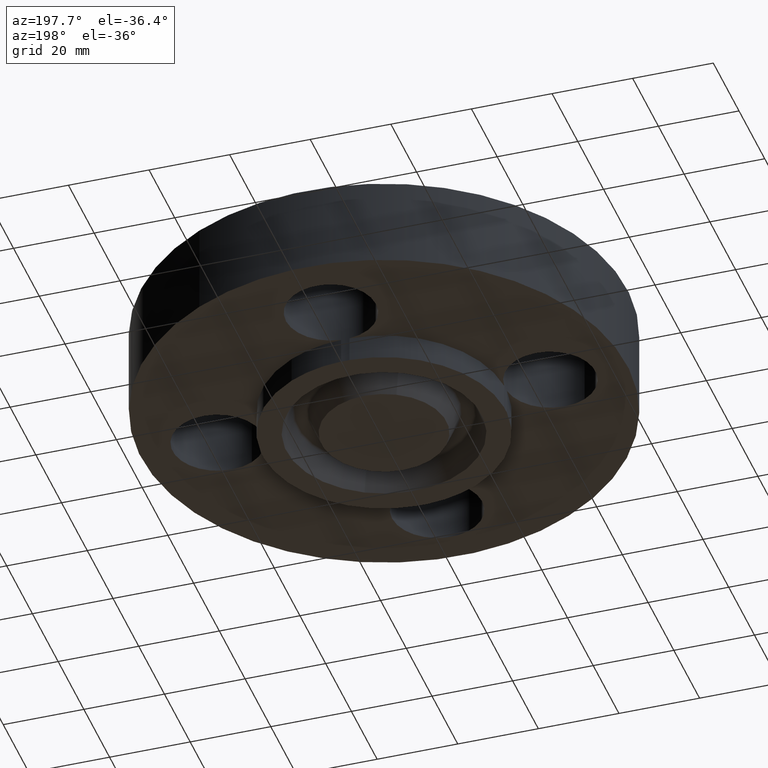
[diagram: clean part render]
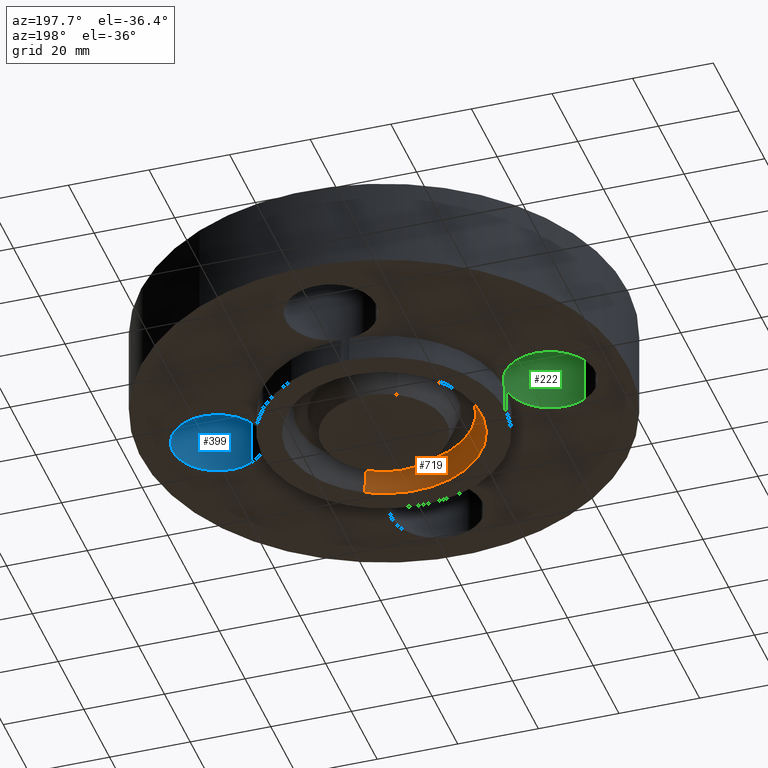
[diagram: same view with three faces highlighted in distinct colors, each labeled with its STEP entity id]
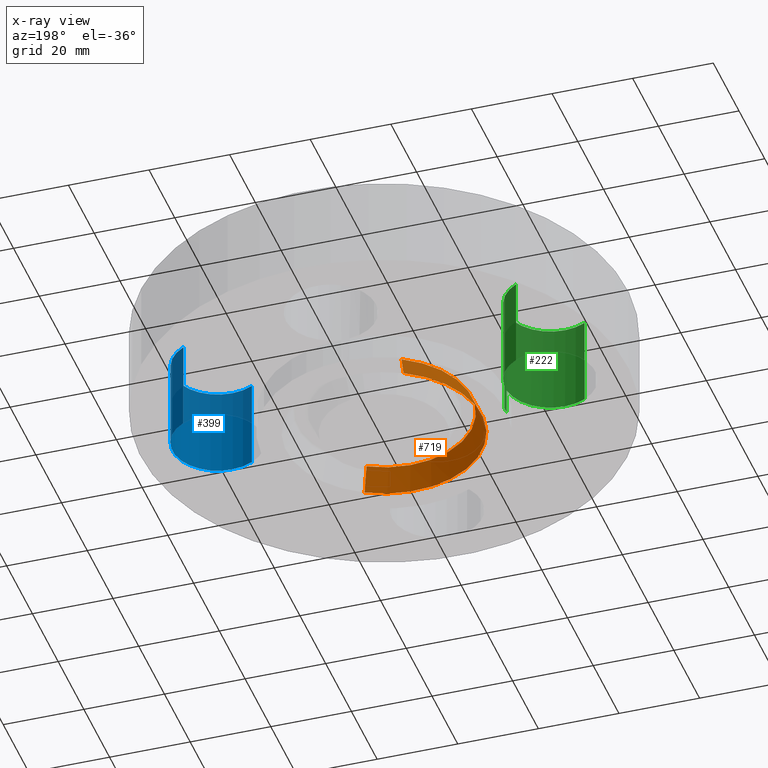
[diagram: x-ray of the same camera — body ghosted, the three highlighted faces saturated]
A machine part, auxiliary view with three faces highlighted in distinct colors.
The next image is the same camera in x-ray (body ghosted, the three faces saturated) — at least one of them is partly hidden behind the body in this view.
Their STEP definitions:

[orange] entity #719 — the highlighted conical surface has half-angle 23 deg.
#143=AXIS2_PLACEMENT_3D('Circle Axis2P3D',#141,#142,$) ;
#665=AXIS2_PLACEMENT_3D('Circle Axis2P3D',#663,#664,$) ;
#701=AXIS2_PLACEMENT_3D('Cone Axis2P3D',#698,#699,#700) ;
#141=CARTESIAN_POINT('Axis2P3D Location',(-3.49676543189E-017,1.39870617276E-016,-0.250000000001)) ;
#145=CARTESIAN_POINT('Vertex',(0.457132251061,-0.836774972766,-0.250000000001)) ;
#147=CARTESIAN_POINT('Vertex',(-0.457132251061,0.836774972766,-0.250000000001)) ;
#663=CARTESIAN_POINT('Axis2P3D Location',(0.,0.,-0.0188873350169)) ;
#667=CARTESIAN_POINT('Vertex',(-0.410099883712,0.750682801811,-0.0188873350169)) ;
#669=CARTESIAN_POINT('Vertex',(0.410099883712,-0.750682801811,-0.0188873350169)) ;
#698=CARTESIAN_POINT('Axis2P3D Location',(0.,0.,-0.0188873350169)) ;
#703=CARTESIAN_POINT('Line Origine',(-0.433616067387,0.793728887289,-0.134443667509)) ;
#708=CARTESIAN_POINT('Line Origine',(0.433616067387,-0.793728887289,-0.134443667509)) ;
#142=DIRECTION('Axis2P3D Direction',(0.,0.,-0.0393700787402)) ;
#664=DIRECTION('Axis2P3D Direction',(0.,0.,0.0393700787402)) ;
#699=DIRECTION('Axis2P3D Direction',(-0.,-0.,-0.0393700787402)) ;
#700=DIRECTION('Axis2P3D XDirection',(-0.0188750212049,0.0345504945626,0.)) ;
#704=DIRECTION('Vector Direction',(-0.00737505833565,0.0134999537303,-0.0362403485611)) ;
#709=DIRECTION('Vector Direction',(0.00737505833565,-0.0134999537303,-0.0362403485611)) ;
#705=VECTOR('Line Direction',#704,0.0393700787402) ;
#710=VECTOR('Line Direction',#709,0.0393700787402) ;
#714=ORIENTED_EDGE('',*,*,#149,.T.) ;
#715=ORIENTED_EDGE('',*,*,#707,.T.) ;
#716=ORIENTED_EDGE('',*,*,#671,.T.) ;
#717=ORIENTED_EDGE('',*,*,#712,.F.) ;
#719=ADVANCED_FACE('PartBody',(#718),#702,.F.) ;
#144=CIRCLE('generated circle',#143,0.953500000004) ;
#666=CIRCLE('generated circle',#665,0.855398494011) ;
#702=CONICAL_SURFACE('Cone',#701,0.855398494011,0.401425727959) ;
#149=EDGE_CURVE('',#146,#148,#144,.T.) ;
#671=EDGE_CURVE('',#668,#670,#666,.T.) ;
#707=EDGE_CURVE('',#148,#668,#706,.F.) ;
#712=EDGE_CURVE('',#146,#670,#711,.F.) ;
#713=EDGE_LOOP('',(#714,#715,#716,#717)) ;
#718=FACE_OUTER_BOUND('',#713,.T.) ;
#706=LINE('Line',#703,#705) ;
#711=LINE('Line',#708,#710) ;
#146=VERTEX_POINT('',#145) ;
#148=VERTEX_POINT('',#147) ;
#668=VERTEX_POINT('',#667) ;
#670=VERTEX_POINT('',#669) ;

[blue] entity #399 — the highlighted cylindrical surface (partial cylindrical patch) has radius 11.176 mm, axis along (0, -0, -1).
#323=AXIS2_PLACEMENT_3D('Cylinder Axis2P3D',#320,#321,#322) ;
#385=AXIS2_PLACEMENT_3D('Circle Axis2P3D',#383,#384,$) ;
#390=AXIS2_PLACEMENT_3D('Circle Axis2P3D',#388,#389,$) ;
#320=CARTESIAN_POINT('Axis2P3D Location',(1.62500000001,-1.8023868212E-016,0.87606299213)) ;
#325=CARTESIAN_POINT('Line Origine',(1.41405276302,-0.386136327233,0.440000000002)) ;
#329=CARTESIAN_POINT('Vertex',(1.41405276302,-0.386136327233,0.)) ;
#331=CARTESIAN_POINT('Vertex',(1.41405276302,-0.386136327233,0.880000000004)) ;
#357=CARTESIAN_POINT('Vertex',(1.83594723699,0.386136327233,0.)) ;
#360=CARTESIAN_POINT('Line Origine',(1.83594723699,0.386136327233,0.440000000002)) ;
#364=CARTESIAN_POINT('Vertex',(1.83594723699,0.386136327233,0.880000000004)) ;
#383=CARTESIAN_POINT('Axis2P3D Location',(1.62500000001,-1.8023868212E-016,0.)) ;
#388=CARTESIAN_POINT('Axis2P3D Location',(1.62500000001,-1.8023868212E-016,0.880000000004)) ;
#321=DIRECTION('Axis2P3D Direction',(0.,-0.,-0.0393700787402)) ;
#322=DIRECTION('Axis2P3D XDirection',(0.0188750212049,0.0345504945626,-0.)) ;
#326=DIRECTION('Vector Direction',(0.,0.,-0.0393700787402)) ;
#361=DIRECTION('Vector Direction',(0.,0.,-0.0393700787402)) ;
#384=DIRECTION('Axis2P3D Direction',(0.,-0.,-0.0393700787402)) ;
#389=DIRECTION('Axis2P3D Direction',(0.,-0.,-0.0393700787402)) ;
#327=VECTOR('Line Direction',#326,0.0393700787402) ;
#362=VECTOR('Line Direction',#361,0.0393700787402) ;
#394=ORIENTED_EDGE('',*,*,#366,.F.) ;
#395=ORIENTED_EDGE('',*,*,#387,.T.) ;
#396=ORIENTED_EDGE('',*,*,#333,.T.) ;
#397=ORIENTED_EDGE('',*,*,#392,.F.) ;
#399=ADVANCED_FACE('PartBody',(#398),#324,.F.) ;
#386=CIRCLE('generated circle',#385,0.440000000002) ;
#391=CIRCLE('generated circle',#390,0.440000000002) ;
#324=CYLINDRICAL_SURFACE('generated cylinder',#323,0.440000000002) ;
#333=EDGE_CURVE('',#330,#332,#328,.F.) ;
#366=EDGE_CURVE('',#358,#365,#363,.F.) ;
#387=EDGE_CURVE('',#358,#330,#386,.T.) ;
#392=EDGE_CURVE('',#365,#332,#391,.T.) ;
#393=EDGE_LOOP('',(#394,#395,#396,#397)) ;
#398=FACE_OUTER_BOUND('',#393,.T.) ;
#328=LINE('Line',#325,#327) ;
#363=LINE('Line',#360,#362) ;
#330=VERTEX_POINT('',#329) ;
#332=VERTEX_POINT('',#331) ;
#358=VERTEX_POINT('',#357) ;
#365=VERTEX_POINT('',#364) ;

[green] entity #222 — the highlighted cylindrical surface (partial cylindrical patch) has radius 11.176 mm, axis along (0, 0, -1).
#91=AXIS2_PLACEMENT_3D('Circle Axis2P3D',#89,#90,$) ;
#163=AXIS2_PLACEMENT_3D('Cylinder Axis2P3D',#160,#161,#162) ;
#176=AXIS2_PLACEMENT_3D('Circle Axis2P3D',#174,#175,$) ;
#195=AXIS2_PLACEMENT_3D('Circle Axis2P3D',#193,#194,$) ;
#209=AXIS2_PLACEMENT_3D('Circle Axis2P3D',#207,#208,$) ;
#86=CARTESIAN_POINT('Vertex',(-1.186825,-0.0400333532821,-0.250000000001)) ;
#89=CARTESIAN_POINT('Axis2P3D Location',(-1.62500000001,-2.79741234551E-016,-0.250000000001)) ;
#93=CARTESIAN_POINT('Vertex',(-1.186825,0.0400333532821,-0.250000000001)) ;
#160=CARTESIAN_POINT('Axis2P3D Location',(-1.62500000001,-2.98507657293E-016,0.87606299213)) ;
#165=CARTESIAN_POINT('Line Origine',(-1.41405276302,0.386136327233,0.440000000002)) ;
#169=CARTESIAN_POINT('Vertex',(-1.41405276302,0.386136327233,0.)) ;
#171=CARTESIAN_POINT('Vertex',(-1.41405276302,0.386136327233,0.880000000004)) ;
#174=CARTESIAN_POINT('Axis2P3D Location',(-1.62500000001,-2.98507657293E-016,0.)) ;
#178=CARTESIAN_POINT('Vertex',(-1.186825,0.0400333532821,0.)) ;
#181=CARTESIAN_POINT('Line Origine',(-1.186825,0.0400333532821,0.440000000002)) ;
#186=CARTESIAN_POINT('Line Origine',(-1.186825,-0.0400333532821,0.440000000002)) ;
#190=CARTESIAN_POINT('Vertex',(-1.186825,-0.0400333532821,0.)) ;
#193=CARTESIAN_POINT('Axis2P3D Location',(-1.62500000001,-2.98507657293E-016,0.)) ;
#197=CARTESIAN_POINT('Vertex',(-1.83594723699,-0.386136327233,0.)) ;
#200=CARTESIAN_POINT('Line Origine',(-1.83594723699,-0.386136327233,0.440000000002)) ;
#204=CARTESIAN_POINT('Vertex',(-1.83594723699,-0.386136327233,0.880000000004)) ;
#207=CARTESIAN_POINT('Axis2P3D Location',(-1.62500000001,-2.98507657293E-016,0.880000000004)) ;
#90=DIRECTION('Axis2P3D Direction',(0.,0.,-0.0393700787402)) ;
#161=DIRECTION('Axis2P3D Direction',(0.,0.,-0.0393700787402)) ;
#162=DIRECTION('Axis2P3D XDirection',(-0.0188750212049,-0.0345504945626,-0.)) ;
#166=DIRECTION('Vector Direction',(0.,0.,-0.0393700787402)) ;
#175=DIRECTION('Axis2P3D Direction',(0.,0.,-0.0393700787402)) ;
#182=DIRECTION('Vector Direction',(0.,0.,-0.0393700787402)) ;
#187=DIRECTION('Vector Direction',(0.,0.,-0.0393700787402)) ;
#194=DIRECTION('Axis2P3D Direction',(0.,0.,-0.0393700787402)) ;
#201=DIRECTION('Vector Direction',(0.,0.,-0.0393700787402)) ;
#208=DIRECTION('Axis2P3D Direction',(0.,0.,-0.0393700787402)) ;
#167=VECTOR('Line Direction',#166,0.0393700787402) ;
#183=VECTOR('Line Direction',#182,0.0393700787402) ;
#188=VECTOR('Line Direction',#187,0.0393700787402) ;
#202=VECTOR('Line Direction',#201,0.0393700787402) ;
#213=ORIENTED_EDGE('',*,*,#173,.F.) ;
#214=ORIENTED_EDGE('',*,*,#180,.T.) ;
#215=ORIENTED_EDGE('',*,*,#185,.T.) ;
#216=ORIENTED_EDGE('',*,*,#95,.T.) ;
#217=ORIENTED_EDGE('',*,*,#192,.F.) ;
#218=ORIENTED_EDGE('',*,*,#199,.T.) ;
#219=ORIENTED_EDGE('',*,*,#206,.T.) ;
#220=ORIENTED_EDGE('',*,*,#211,.F.) ;
#222=ADVANCED_FACE('PartBody',(#221),#164,.F.) ;
#92=CIRCLE('generated circle',#91,0.440000000002) ;
#177=CIRCLE('generated circle',#176,0.440000000002) ;
#196=CIRCLE('generated circle',#195,0.440000000002) ;
#210=CIRCLE('generated circle',#209,0.440000000002) ;
#164=CYLINDRICAL_SURFACE('generated cylinder',#163,0.440000000002) ;
#95=EDGE_CURVE('',#94,#87,#92,.T.) ;
#173=EDGE_CURVE('',#170,#172,#168,.F.) ;
#180=EDGE_CURVE('',#170,#179,#177,.T.) ;
#185=EDGE_CURVE('',#179,#94,#184,.T.) ;
#192=EDGE_CURVE('',#191,#87,#189,.T.) ;
#199=EDGE_CURVE('',#191,#198,#196,.T.) ;
#206=EDGE_CURVE('',#198,#205,#203,.F.) ;
#211=EDGE_CURVE('',#172,#205,#210,.T.) ;
#212=EDGE_LOOP('',(#213,#214,#215,#216,#217,#218,#219,#220)) ;
#221=FACE_OUTER_BOUND('',#212,.T.) ;
#168=LINE('Line',#165,#167) ;
#184=LINE('Line',#181,#183) ;
#189=LINE('Line',#186,#188) ;
#203=LINE('Line',#200,#202) ;
#87=VERTEX_POINT('',#86) ;
#94=VERTEX_POINT('',#93) ;
#170=VERTEX_POINT('',#169) ;
#172=VERTEX_POINT('',#171) ;
#179=VERTEX_POINT('',#178) ;
#191=VERTEX_POINT('',#190) ;
#198=VERTEX_POINT('',#197) ;
#205=VERTEX_POINT('',#204) ;